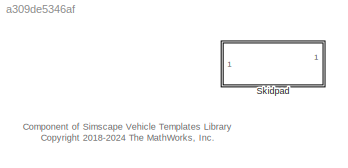
MODEL slx_a309de5346af
KIND library
CONFIG AbsTol = auto
CONFIG EnableMultiTasking = off
CONFIG FixedStep = auto
CONFIG MaxStep = auto
CONFIG MinStep = auto
CONFIG RelTol = 1e-3
CONFIG SampleTimeConstraint = Unconstrained
CONFIG SolverName = VariableStepAuto
CONFIG StartTime = 0.0
CONFIG StopTime = 10.0
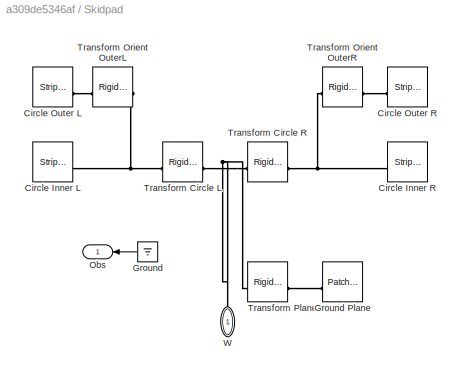
BLOCK [SubSystem] Skidpad
BLOCK [Reference] Skidpad/Circle Inner L  REF=Scene_Utilities/Stripe Ring
  SourceBlock = Scene_Utilities/Stripe Ring
BLOCK [Reference] Skidpad/Circle Inner R  REF=Scene_Utilities/Stripe Ring
  SourceBlock = Scene_Utilities/Stripe Ring
BLOCK [Reference] Skidpad/Circle Outer L  REF=Scene_Utilities/Stripe Ring
  SourceBlock = Scene_Utilities/Stripe Ring
BLOCK [Reference] Skidpad/Circle Outer R  REF=Scene_Utilities/Stripe Ring
  SourceBlock = Scene_Utilities/Stripe Ring
BLOCK [Ground] Skidpad/Ground
  NameLocation = top
BLOCK [Reference] Skidpad/Ground Plane  REF=Scene_Utilities/Patch Rectangle
  NameLocation = top
  SourceBlock = Scene_Utilities/Patch Rectangle
BLOCK [Outport] Skidpad/Obs
  VectorParamsAs1DForOutWhenUnconnected = off
BLOCK [Reference] Skidpad/Transform Circle L  REF=sm_lib/Frames and
Transforms/Rigid
Transform
  SourceBlock = sm_lib/Frames and\nTransforms/Rigid\nTransform
  SourceType = Rigid\nTransform
BLOCK [Reference] Skidpad/Transform Circle R  REF=sm_lib/Frames and
Transforms/Rigid
Transform
  SourceBlock = sm_lib/Frames and\nTransforms/Rigid\nTransform
  SourceType = Rigid\nTransform
BLOCK [Reference] Skidpad/Transform Orient OuterL  REF=sm_lib/Frames and
Transforms/Rigid
Transform
  SourceBlock = sm_lib/Frames and\nTransforms/Rigid\nTransform
  SourceType = Rigid\nTransform
BLOCK [Reference] Skidpad/Transform Orient OuterR  REF=sm_lib/Frames and
Transforms/Rigid
Transform
  SourceBlock = sm_lib/Frames and\nTransforms/Rigid\nTransform
  SourceType = Rigid\nTransform
BLOCK [Reference] Skidpad/Transform Plane  REF=sm_lib/Frames and
Transforms/Rigid
Transform
  NameLocation = top
  SourceBlock = sm_lib/Frames and\nTransforms/Rigid\nTransform
  SourceType = Rigid\nTransform
BLOCK [PMIOPort] Skidpad/W
  NameLocation = right
  Side = Left
ANNOTATION (root): Component of Simscape Vehicle Templates Library <copyright redacted>
LINE Skidpad/Ground:1 -> Skidpad/Obs:1
PNET net1: Skidpad/Circle Inner L:RConn1 -- Skidpad/Transform Circle L:RConn1 -- Skidpad/Transform Orient OuterL:LConn1
PNET net2: Skidpad/Circle Inner R:RConn1 -- Skidpad/Transform Circle R:RConn1 -- Skidpad/Transform Orient OuterR:LConn1
PLINE Skidpad/Circle Outer L:RConn1 -- Skidpad/Transform Orient OuterL:RConn1
PLINE Skidpad/Circle Outer R:RConn1 -- Skidpad/Transform Orient OuterR:RConn1
PLINE Skidpad/Ground Plane:RConn1 -- Skidpad/Transform Plane:RConn1
PNET net3: Skidpad/Transform Circle L:LConn1 -- Skidpad/Transform Circle R:LConn1 -- Skidpad/Transform Plane:LConn1 -- Skidpad/W:RConn1
note: PNET lines group multi-terminal physical nets as a canonical sorted terminal list (undirected conserving connections); 2-terminal nets keep the pairwise PLINE form
